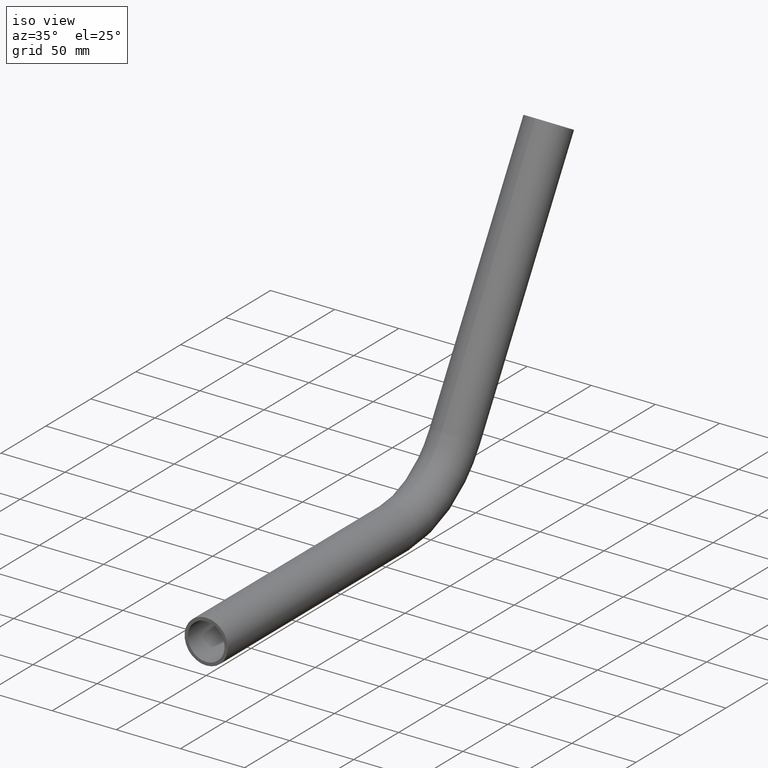
[diagram: clean part render]
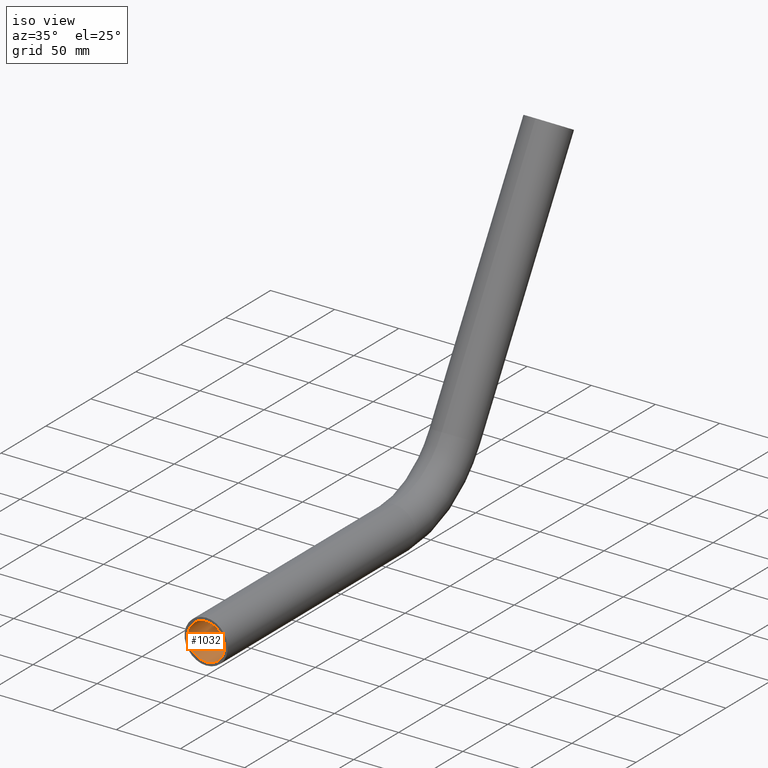
[diagram: same view with one face highlighted and labeled with its STEP entity id]
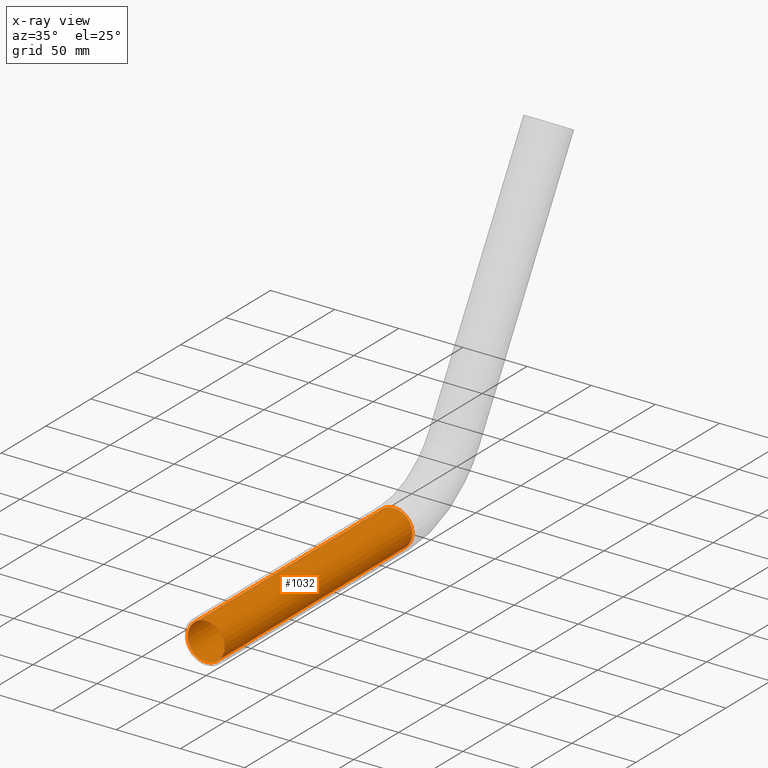
[diagram: x-ray of the same camera — body ghosted, the highlighted face saturated]
A machine part, iso view. The second image highlights one B-rep face of the part: STEP entity #1032.
The next image is the same camera in x-ray: the body ghosted, the highlighted face saturated — about 0% of this face is hidden behind the body in this view.
In plain terms, the highlighted cylindrical surface (bore or boss wall) has radius 14.35 mm, axis along (-0, -1, 0).
Its self-contained STEP definition (entity closure, byte-faithful):
#216 = CARTESIAN_POINT ( 'NONE',  ( 0.000000000000000000, 0.000000000000000000, 0.000000000000000000 ) ) ;
#239 = DIRECTION ( 'NONE',  ( 0.000000000000000000, 0.000000000000000000, -1.000000000000000000 ) ) ;
#457 = ORIENTED_EDGE ( 'NONE', *, *, #12175, .F. ) ;
#1032 = ADVANCED_FACE ( 'NONE', ( #8854, #10205 ), #3588, .F. ) ;
#1687 = CARTESIAN_POINT ( 'NONE',  ( 0.000000000000000000, 0.000000000000000000, 14.34999999999999964 ) ) ;
#1919 = DIRECTION ( 'NONE',  ( 0.000000000000000000, 0.000000000000000000, -1.000000000000000000 ) ) ;
#2813 = CARTESIAN_POINT ( 'NONE',  ( 0.000000000000000000, 209.1592955033325723, -14.34999999999999964 ) ) ;
#3588 = CYLINDRICAL_SURFACE ( 'NONE', #4866, 14.34999999999999964 ) ;
#3834 = AXIS2_PLACEMENT_3D ( 'NONE', #12069, #6137, #239 ) ;
#3943 = EDGE_LOOP ( 'NONE', ( #457 ) ) ;
#4866 = AXIS2_PLACEMENT_3D ( 'NONE', #9724, #6773, #1919 ) ;
#5162 = DIRECTION ( 'NONE',  ( 0.000000000000000000, 0.000000000000000000, 1.000000000000000000 ) ) ;
#5490 = AXIS2_PLACEMENT_3D ( 'NONE', #216, #7103, #5162 ) ;
#5536 = ORIENTED_EDGE ( 'NONE', *, *, #7423, .T. ) ;
#5781 = VERTEX_POINT ( 'NONE', #1687 ) ;
#5977 = CIRCLE ( 'NONE', #5490, 14.34999999999999964 ) ;
#6137 = DIRECTION ( 'NONE',  ( -0.000000000000000000, 1.000000000000000000, -0.000000000000000000 ) ) ;
#6773 = DIRECTION ( 'NONE',  ( -0.000000000000000000, -1.000000000000000000, 3.568805025168771619E-31 ) ) ;
#7103 = DIRECTION ( 'NONE',  ( 0.000000000000000000, 1.000000000000000000, 0.000000000000000000 ) ) ;
#7423 = EDGE_CURVE ( 'NONE', #9031, #9031, #10166, .T. ) ;
#8546 = EDGE_LOOP ( 'NONE', ( #5536 ) ) ;
#8854 = FACE_OUTER_BOUND ( 'NONE', #8546, .T. ) ;
#9031 = VERTEX_POINT ( 'NONE', #2813 ) ;
#9724 = CARTESIAN_POINT ( 'NONE',  ( 0.000000000000000000, 209.1592955033325723, -7.464487448530533640E-29 ) ) ;
#10166 = CIRCLE ( 'NONE', #3834, 14.34999999999999964 ) ;
#10205 = FACE_OUTER_BOUND ( 'NONE', #3943, .T. ) ;
#12069 = CARTESIAN_POINT ( 'NONE',  ( 0.000000000000000000, 209.1592955033325723, 0.000000000000000000 ) ) ;
#12175 = EDGE_CURVE ( 'NONE', #5781, #5781, #5977, .T. ) ;